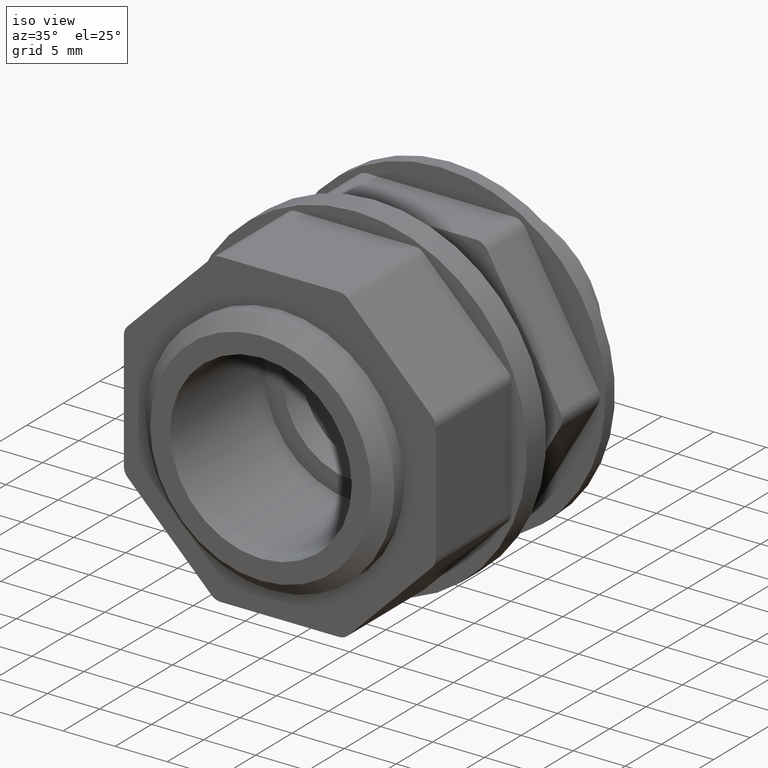
[diagram: clean part render]
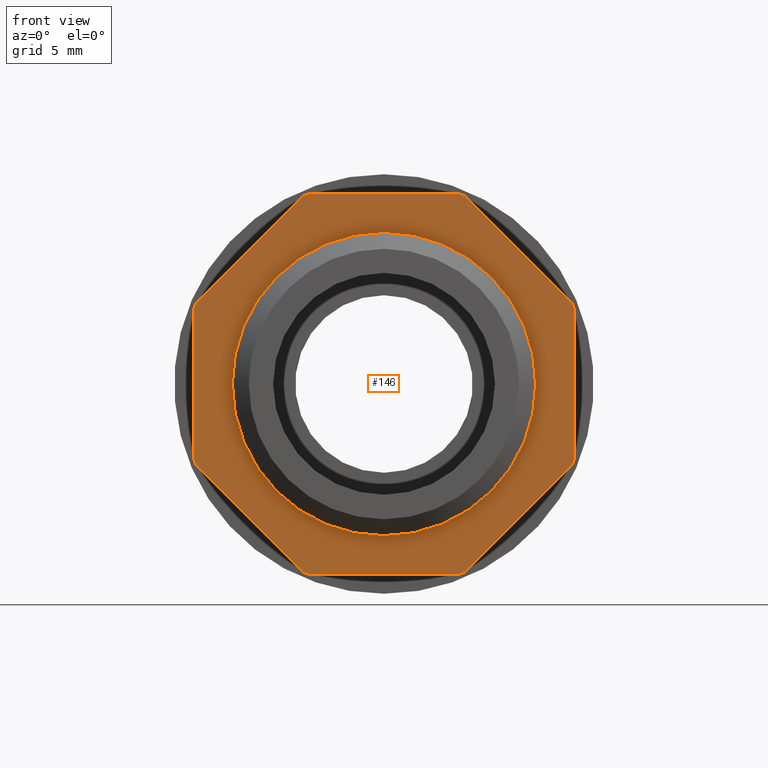
[diagram: tour spotlight — one face highlighted and labeled with its STEP entity id]
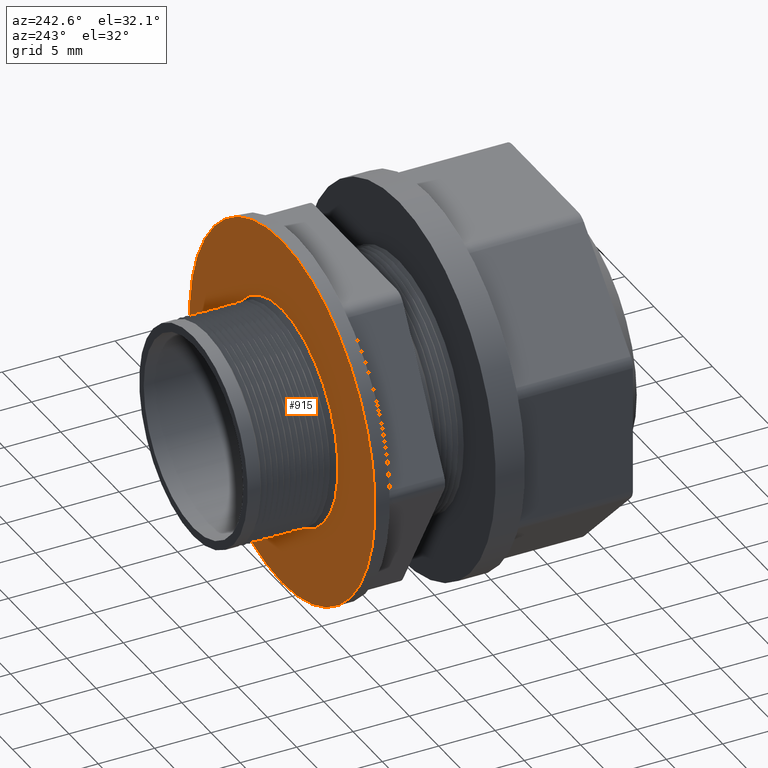
[diagram: tour spotlight — one face highlighted and labeled with its STEP entity id]
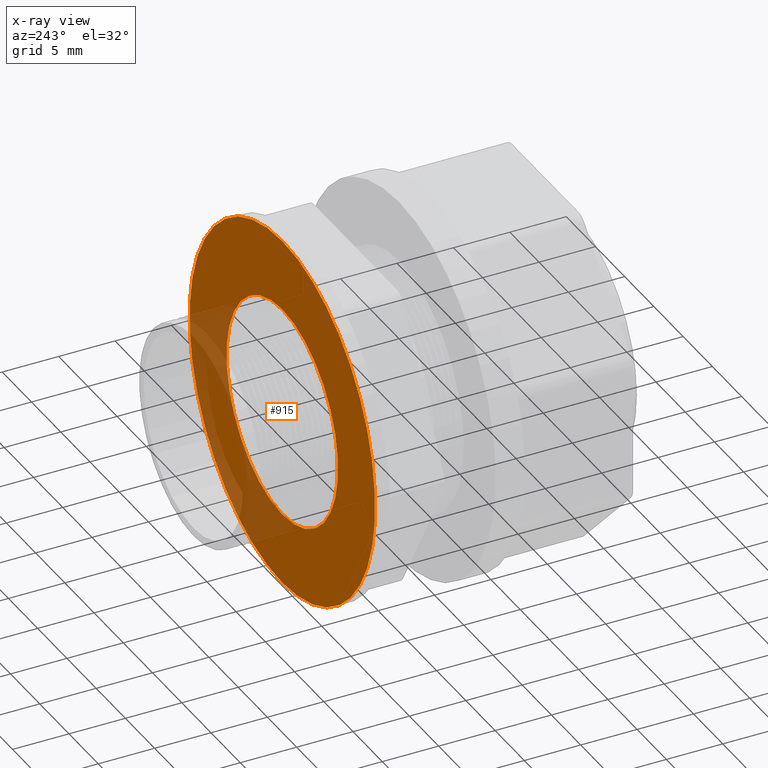
[diagram: x-ray of the same camera — body ghosted, this tour face saturated]
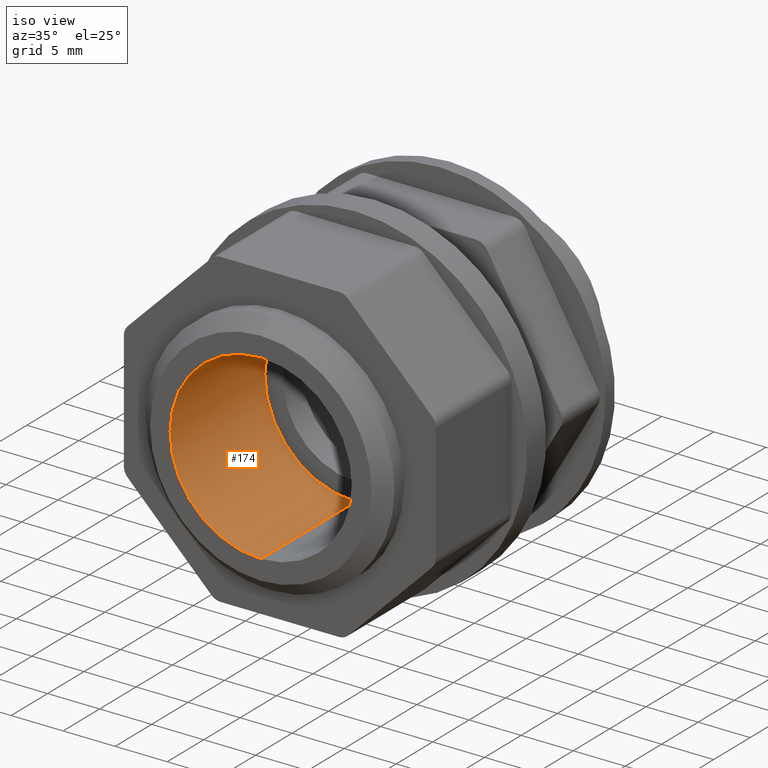
[diagram: tour spotlight — one face highlighted and labeled with its STEP entity id]
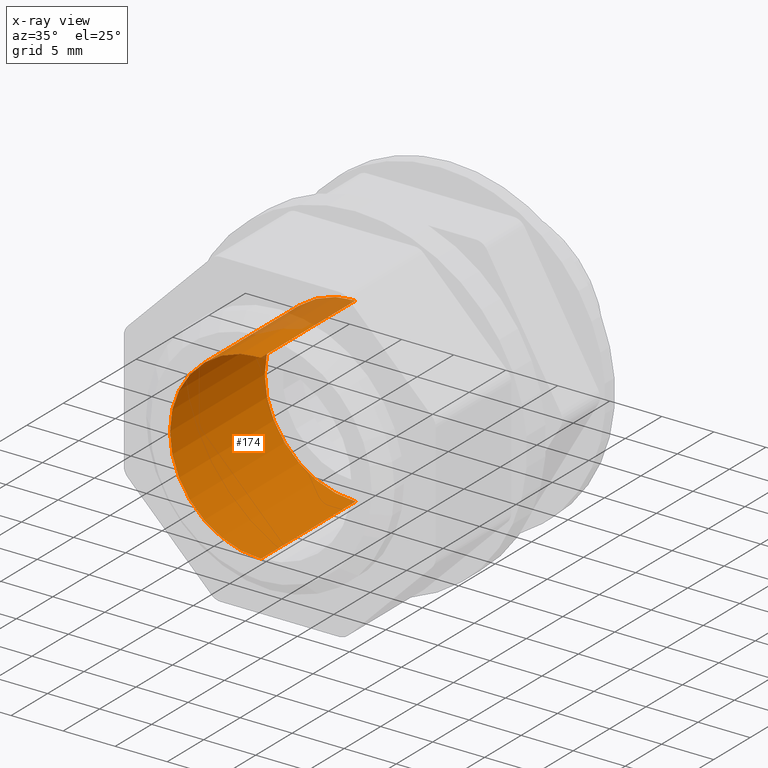
[diagram: x-ray of the same camera — body ghosted, this tour face saturated]
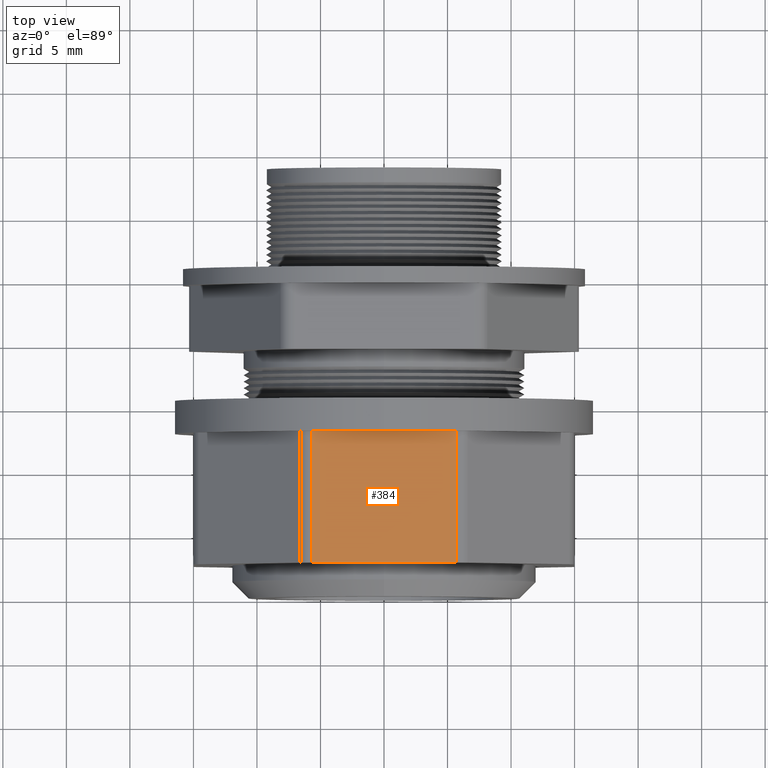
[diagram: tour spotlight — one face highlighted and labeled with its STEP entity id]
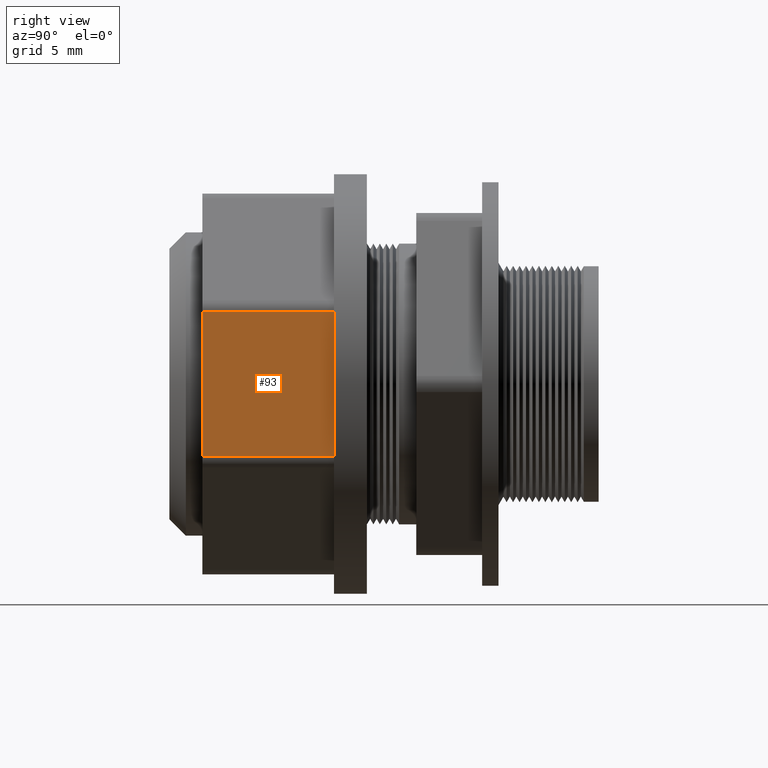
[diagram: tour spotlight — one face highlighted and labeled with its STEP entity id]
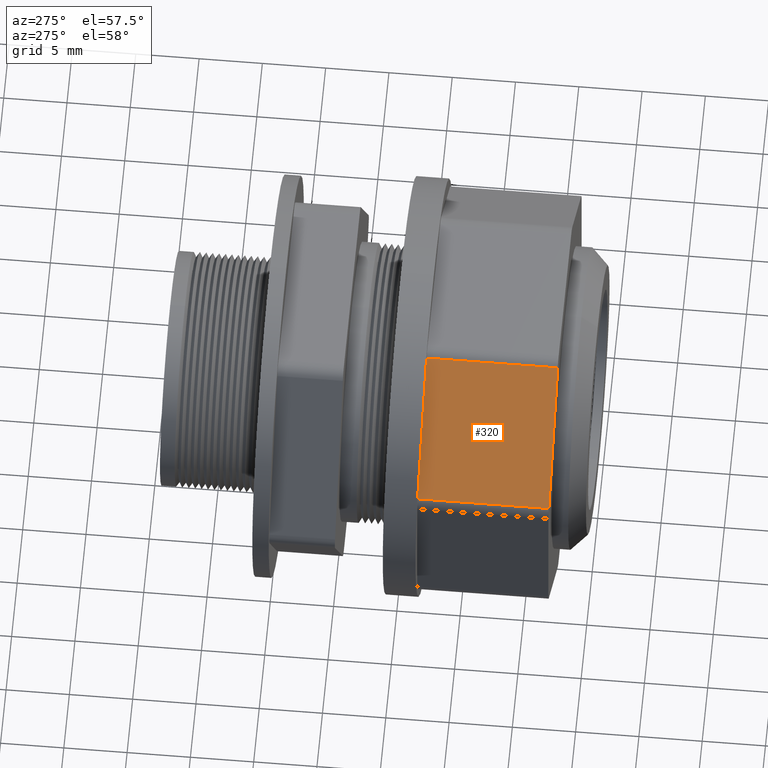
[diagram: tour spotlight — one face highlighted and labeled with its STEP entity id]
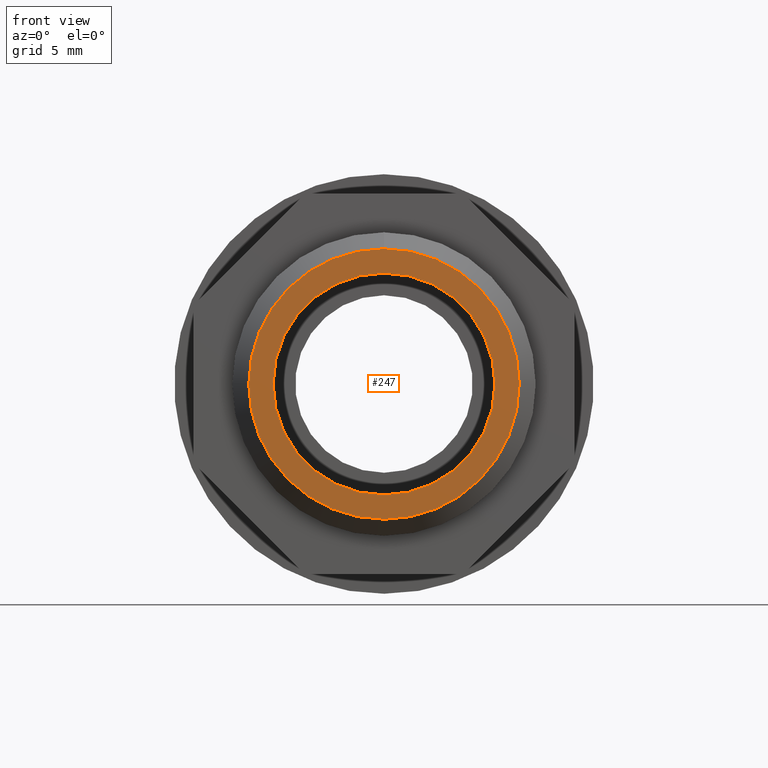
[diagram: tour spotlight — one face highlighted and labeled with its STEP entity id]
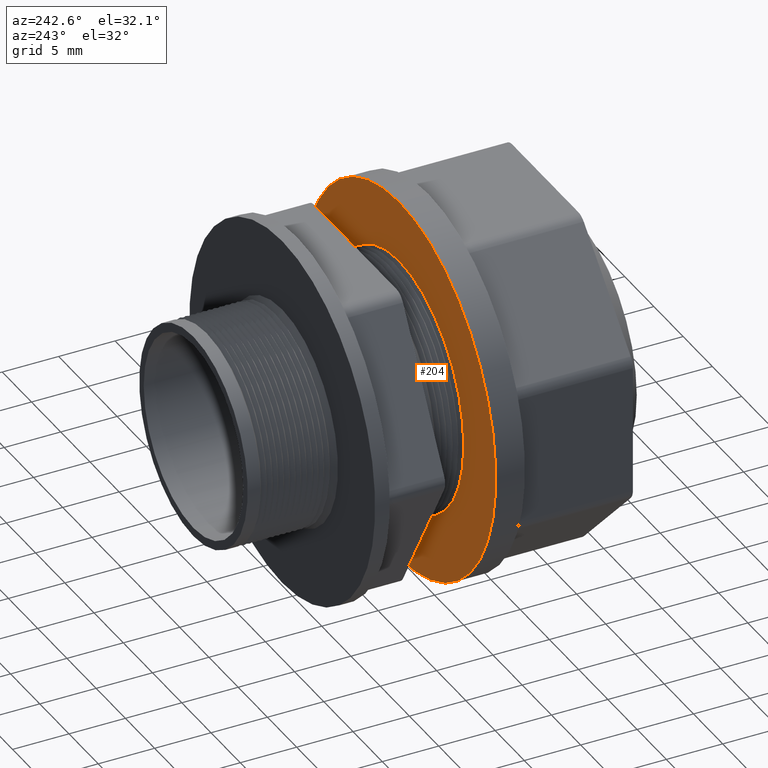
[diagram: tour spotlight — one face highlighted and labeled with its STEP entity id]
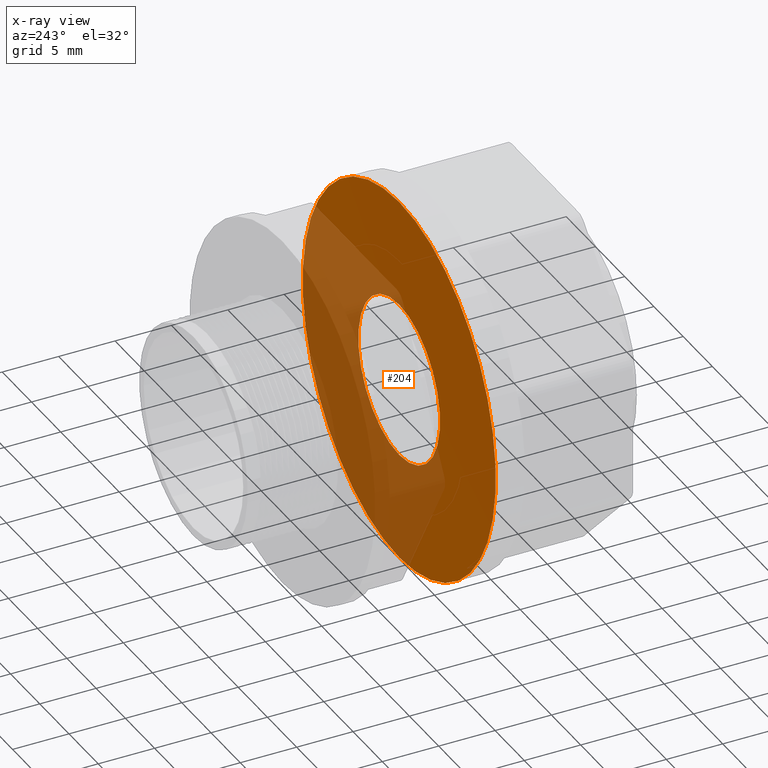
[diagram: x-ray of the same camera — body ghosted, this tour face saturated]
A machine part: a face-by-face anatomy tour. The part has 128 B-rep faces; the first image is the clean iso view, then the 8 largest visible faces are spotlighted one at a time (largest first), each with its STEP entity span.

Face 1 — front view, entity #146. In plain terms, the highlighted planar face has unit normal (0, -1, 0).
Definition (entity closure, byte-faithful):
#43 = VERTEX_POINT ( 'NONE', #1417 ) ;
#66 = EDGE_LOOP ( 'NONE', ( #147, #148 ) ) ;
#117 = VERTEX_POINT ( 'NONE', #1559 ) ;
#118 = VERTEX_POINT ( 'NONE', #1535 ) ;
#119 = ORIENTED_EDGE ( 'NONE', *, *, #120, .T. ) ;
#120 = EDGE_CURVE ( 'NONE', #118, #117, #1584, .T. ) ;
#121 = VERTEX_POINT ( 'NONE', #1574 ) ;
#122 = EDGE_CURVE ( 'NONE', #121, #118, #1554, .T. ) ;
#123 = ORIENTED_EDGE ( 'NONE', *, *, #264, .T. ) ;
#124 = EDGE_CURVE ( 'NONE', #132, #121, #1476, .T. ) ;
#125 = ORIENTED_EDGE ( 'NONE', *, *, #122, .T. ) ;
#127 = VERTEX_POINT ( 'NONE', #1515 ) ;
#128 = ORIENTED_EDGE ( 'NONE', *, *, #130, .T. ) ;
#129 = ORIENTED_EDGE ( 'NONE', *, *, #131, .T. ) ;
#130 = EDGE_CURVE ( 'NONE', #127, #132, #1526, .T. ) ;
#131 = EDGE_CURVE ( 'NONE', #134, #127, #1527, .T. ) ;
#132 = VERTEX_POINT ( 'NONE', #1556 ) ;
#134 = VERTEX_POINT ( 'NONE', #1474 ) ;
#135 = EDGE_CURVE ( 'NONE', #138, #134, #1473, .T. ) ;
#136 = EDGE_CURVE ( 'NONE', #237, #138, #1588, .T. ) ;
#137 = ORIENTED_EDGE ( 'NONE', *, *, #136, .T. ) ;
#138 = VERTEX_POINT ( 'NONE', #1571 ) ;
#139 = ORIENTED_EDGE ( 'NONE', *, *, #135, .T. ) ;
#143 = EDGE_CURVE ( 'NONE', #245, #237, #1523, .T. ) ;
#146 = ADVANCED_FACE ( 'NONE', ( #1531, #1624 ), #1623, .T. ) ;
#147 = ORIENTED_EDGE ( 'NONE', *, *, #157, .T. ) ;
#148 = ORIENTED_EDGE ( 'NONE', *, *, #149, .T. ) ;
#149 = EDGE_CURVE ( 'NONE', #173, #43, #1564, .T. ) ;
#150 = EDGE_LOOP ( 'NONE', ( #151, #241, #244, #238, #137, #139, #129, #128, #239, #125, #119, #123, #255, #193, #185, #192 ) ) ;
#151 = ORIENTED_EDGE ( 'NONE', *, *, #152, .T. ) ;
#152 = EDGE_CURVE ( 'NONE', #153, #154, #1601, .T. ) ;
#153 = VERTEX_POINT ( 'NONE', #1597 ) ;
#154 = VERTEX_POINT ( 'NONE', #1582 ) ;
#157 = EDGE_CURVE ( 'NONE', #43, #173, #1622, .T. ) ;
#173 = VERTEX_POINT ( 'NONE', #1495 ) ;
#182 = VERTEX_POINT ( 'NONE', #1511 ) ;
#183 = EDGE_CURVE ( 'NONE', #263, #182, #1510, .T. ) ;
#184 = EDGE_CURVE ( 'NONE', #182, #194, #1506, .T. ) ;
#185 = ORIENTED_EDGE ( 'NONE', *, *, #191, .T. ) ;
#186 = VERTEX_POINT ( 'NONE', #1540 ) ;
#191 = EDGE_CURVE ( 'NONE', #194, #186, #1634, .T. ) ;
#192 = ORIENTED_EDGE ( 'NONE', *, *, #256, .T. ) ;
#193 = ORIENTED_EDGE ( 'NONE', *, *, #184, .T. ) ;
#194 = VERTEX_POINT ( 'NONE', #1630 ) ;
#237 = VERTEX_POINT ( 'NONE', #1792 ) ;
#238 = ORIENTED_EDGE ( 'NONE', *, *, #143, .T. ) ;
#239 = ORIENTED_EDGE ( 'NONE', *, *, #124, .T. ) ;
#240 = VERTEX_POINT ( 'NONE', #1791 ) ;
#241 = ORIENTED_EDGE ( 'NONE', *, *, #243, .T. ) ;
#242 = EDGE_CURVE ( 'NONE', #240, #245, #1718, .T. ) ;
#243 = EDGE_CURVE ( 'NONE', #154, #240, #1714, .T. ) ;
#244 = ORIENTED_EDGE ( 'NONE', *, *, #242, .T. ) ;
#245 = VERTEX_POINT ( 'NONE', #1709 ) ;
#255 = ORIENTED_EDGE ( 'NONE', *, *, #183, .T. ) ;
#256 = EDGE_CURVE ( 'NONE', #186, #153, #1735, .T. ) ;
#263 = VERTEX_POINT ( 'NONE', #1820 ) ;
#264 = EDGE_CURVE ( 'NONE', #117, #263, #1819, .T. ) ;
#1417 = CARTESIAN_POINT ( 'NONE',  ( 0.0000000000000000000, 0.1020000000000001700, 0.4699999999999997500 ) ) ;
#1468 = DIRECTION ( 'NONE',  ( 0.0000000000000000000, 0.0000000000000000000, 1.000000000000000000 ) ) ;
#1469 = DIRECTION ( 'NONE',  ( -0.0000000000000000000, 1.000000000000000000, -0.0000000000000000000 ) ) ;
#1470 = CARTESIAN_POINT ( 'NONE',  ( 0.0000000000000000000, 0.1020000000000001700, 0.0000000000000000000 ) ) ;
#1471 = AXIS2_PLACEMENT_3D ( 'NONE', #1470, #1469, #1468 ) ;
#1473 = CIRCLE ( 'NONE', #1587, 0.05000000000000001000 ) ;
#1474 = CARTESIAN_POINT ( 'NONE',  ( -0.5753553390593273400, 0.1019999999999999900, -0.2590306627407988900 ) ) ;
#1476 = LINE ( 'NONE', #1596, #1518 ) ;
#1495 = CARTESIAN_POINT ( 'NONE',  ( 5.755839955992557200E-017, 0.1020000000000001700, -0.4699999999999997500 ) ) ;
#1506 = CIRCLE ( 'NONE', #1544, 0.05000000000000001000 ) ;
#1507 = DIRECTION ( 'NONE',  ( 1.397301795899574700E-016, 0.0000000000000000000, 1.000000000000000000 ) ) ;
#1508 = VECTOR ( 'NONE', #1507, 39.37007874015748100 ) ;
#1509 = CARTESIAN_POINT ( 'NONE',  ( 0.5899999999999998600, 0.1019999999999999900, -1.481139903653548700E-016 ) ) ;
#1510 = LINE ( 'NONE', #1509, #1508 ) ;
#1511 = CARTESIAN_POINT ( 'NONE',  ( 0.5899999999999998600, 0.1019999999999999900, 0.2236753236814715300 ) ) ;
#1515 = CARTESIAN_POINT ( 'NONE',  ( -0.2590306627407983300, 0.1019999999999999900, -0.5753553390593274500 ) ) ;
#1517 = DIRECTION ( 'NONE',  ( 1.000000000000000000, 0.0000000000000000000, 0.0000000000000000000 ) ) ;
#1518 = VECTOR ( 'NONE', #1517, 39.37007874015748100 ) ;
#1520 = DIRECTION ( 'NONE',  ( 0.0000000000000000000, -1.000000000000000000, 0.0000000000000000000 ) ) ;
#1521 = CARTESIAN_POINT ( 'NONE',  ( -0.5399999999999999200, 0.1020000000000000400, 0.2236753236814710600 ) ) ;
#1522 = AXIS2_PLACEMENT_3D ( 'NONE', #1521, #1520, #1532 ) ;
#1523 = CIRCLE ( 'NONE', #1522, 0.05000000000000001000 ) ;
#1524 = DIRECTION ( 'NONE',  ( 0.0000000000000000000, -1.000000000000000000, 0.0000000000000000000 ) ) ;
#1525 = AXIS2_PLACEMENT_3D ( 'NONE', #1594, #1524, #1566 ) ;
#1526 = CIRCLE ( 'NONE', #1525, 0.05000000000000001000 ) ;
#1527 = LINE ( 'NONE', #1565, #1558 ) ;
#1531 = FACE_BOUND ( 'NONE', #66, .T. ) ;
#1532 = DIRECTION ( 'NONE',  ( 0.0000000000000000000, 0.0000000000000000000, -1.000000000000000000 ) ) ;
#1535 = CARTESIAN_POINT ( 'NONE',  ( 0.2590306627407986700, 0.1019999999999999900, -0.5753553390593274500 ) ) ;
#1540 = CARTESIAN_POINT ( 'NONE',  ( 0.2590306627407985000, 0.1019999999999999900, 0.5753553390593275600 ) ) ;
#1541 = DIRECTION ( 'NONE',  ( 0.0000000000000000000, 0.0000000000000000000, -1.000000000000000000 ) ) ;
#1542 = DIRECTION ( 'NONE',  ( 0.0000000000000000000, -1.000000000000000000, 0.0000000000000000000 ) ) ;
#1543 = CARTESIAN_POINT ( 'NONE',  ( 0.5399999999999998100, 0.1020000000000000400, 0.2236753236814715300 ) ) ;
#1544 = AXIS2_PLACEMENT_3D ( 'NONE', #1543, #1542, #1541 ) ;
#1554 = CIRCLE ( 'NONE', #1639, 0.05000000000000001000 ) ;
#1556 = CARTESIAN_POINT ( 'NONE',  ( -0.2236753236814710000, 0.1019999999999999900, -0.5899999999999999700 ) ) ;
#1557 = DIRECTION ( 'NONE',  ( 0.7071067811865479100, 0.0000000000000000000, -0.7071067811865470200 ) ) ;
#1558 = VECTOR ( 'NONE', #1557, 39.37007874015748900 ) ;
#1559 = CARTESIAN_POINT ( 'NONE',  ( 0.5753553390593273400, 0.1019999999999999900, -0.2590306627407986700 ) ) ;
#1560 = DIRECTION ( 'NONE',  ( 0.0000000000000000000, -0.0000000000000000000, -1.000000000000000000 ) ) ;
#1561 = DIRECTION ( 'NONE',  ( 0.0000000000000000000, -1.000000000000000000, 0.0000000000000000000 ) ) ;
#1562 = CARTESIAN_POINT ( 'NONE',  ( -0.4699999999999997500, 0.1019999999999999900, 0.0000000000000000000 ) ) ;
#1563 = AXIS2_PLACEMENT_3D ( 'NONE', #1562, #1561, #1560 ) ;
#1564 = CIRCLE ( 'NONE', #1471, 0.4699999999999997500 ) ;
#1565 = CARTESIAN_POINT ( 'NONE',  ( -0.6521930009000629400, 0.1019999999999999900, -0.1821930009000633200 ) ) ;
#1566 = DIRECTION ( 'NONE',  ( 0.0000000000000000000, 0.0000000000000000000, -1.000000000000000000 ) ) ;
#1567 = CARTESIAN_POINT ( 'NONE',  ( -0.5899999999999999700, 0.1019999999999999900, -1.676762155079492700E-017 ) ) ;
#1568 = DIRECTION ( 'NONE',  ( 0.0000000000000000000, 0.0000000000000000000, -1.000000000000000000 ) ) ;
#1571 = CARTESIAN_POINT ( 'NONE',  ( -0.5899999999999999700, 0.1019999999999999900, -0.2236753236814714700 ) ) ;
#1572 = DIRECTION ( 'NONE',  ( 1.397301795899575200E-016, 0.0000000000000000000, -1.000000000000000000 ) ) ;
#1573 = VECTOR ( 'NONE', #1572, 39.37007874015748100 ) ;
#1574 = CARTESIAN_POINT ( 'NONE',  ( 0.2236753236814711400, 0.1019999999999999900, -0.5899999999999999700 ) ) ;
#1575 = DIRECTION ( 'NONE',  ( 0.7071067811865473500, 0.0000000000000000000, 0.7071067811865475700 ) ) ;
#1576 = VECTOR ( 'NONE', #1575, 39.37007874015748900 ) ;
#1582 = CARTESIAN_POINT ( 'NONE',  ( -0.2236753236814713100, 0.1019999999999999900, 0.5900000000000000800 ) ) ;
#1583 = CARTESIAN_POINT ( 'NONE',  ( 0.1821930009000633200, 0.1019999999999999900, -0.6521930009000628200 ) ) ;
#1584 = LINE ( 'NONE', #1583, #1576 ) ;
#1585 = DIRECTION ( 'NONE',  ( 0.0000000000000000000, -1.000000000000000000, 0.0000000000000000000 ) ) ;
#1586 = CARTESIAN_POINT ( 'NONE',  ( -0.5399999999999999200, 0.1020000000000000400, -0.2236753236814714700 ) ) ;
#1587 = AXIS2_PLACEMENT_3D ( 'NONE', #1586, #1585, #1568 ) ;
#1588 = LINE ( 'NONE', #1567, #1573 ) ;
#1594 = CARTESIAN_POINT ( 'NONE',  ( -0.2236753236814710000, 0.1020000000000000400, -0.5399999999999999200 ) ) ;
#1596 = CARTESIAN_POINT ( 'NONE',  ( -0.4699999999999997500, 0.1019999999999999900, -0.5899999999999999700 ) ) ;
#1597 = CARTESIAN_POINT ( 'NONE',  ( 0.2236753236814710600, 0.1019999999999999900, 0.5900000000000000800 ) ) ;
#1598 = DIRECTION ( 'NONE',  ( -1.000000000000000000, 0.0000000000000000000, -1.397301795899575700E-016 ) ) ;
#1599 = VECTOR ( 'NONE', #1598, 39.37007874015748100 ) ;
#1600 = CARTESIAN_POINT ( 'NONE',  ( -0.4699999999999998600, 0.1019999999999999900, 0.5900000000000000800 ) ) ;
#1601 = LINE ( 'NONE', #1600, #1599 ) ;
#1618 = DIRECTION ( 'NONE',  ( 0.0000000000000000000, 0.0000000000000000000, 1.000000000000000000 ) ) ;
#1619 = DIRECTION ( 'NONE',  ( -0.0000000000000000000, 1.000000000000000000, -0.0000000000000000000 ) ) ;
#1620 = CARTESIAN_POINT ( 'NONE',  ( 0.0000000000000000000, 0.1020000000000001700, 0.0000000000000000000 ) ) ;
#1621 = AXIS2_PLACEMENT_3D ( 'NONE', #1620, #1619, #1618 ) ;
#1622 = CIRCLE ( 'NONE', #1621, 0.4699999999999997500 ) ;
#1623 = PLANE ( 'NONE',  #1563 ) ;
#1624 = FACE_OUTER_BOUND ( 'NONE', #150, .T. ) ;
#1630 = CARTESIAN_POINT ( 'NONE',  ( 0.5753553390593273400, 0.1019999999999999900, 0.2590306627407989400 ) ) ;
#1631 = DIRECTION ( 'NONE',  ( -0.7071067811865476800, 0.0000000000000000000, 0.7071067811865472400 ) ) ;
#1632 = VECTOR ( 'NONE', #1631, 39.37007874015748900 ) ;
#1633 = CARTESIAN_POINT ( 'NONE',  ( 0.1821930009000629300, 0.1019999999999999900, 0.6521930009000630500 ) ) ;
#1634 = LINE ( 'NONE', #1633, #1632 ) ;
#1636 = DIRECTION ( 'NONE',  ( 0.0000000000000000000, 0.0000000000000000000, -1.000000000000000000 ) ) ;
#1637 = DIRECTION ( 'NONE',  ( 0.0000000000000000000, -1.000000000000000000, 0.0000000000000000000 ) ) ;
#1638 = CARTESIAN_POINT ( 'NONE',  ( 0.2236753236814711400, 0.1020000000000000400, -0.5399999999999999200 ) ) ;
#1639 = AXIS2_PLACEMENT_3D ( 'NONE', #1638, #1637, #1636 ) ;
#1709 = CARTESIAN_POINT ( 'NONE',  ( -0.5753553390593273400, 0.1019999999999999900, 0.2590306627407983900 ) ) ;
#1710 = DIRECTION ( 'NONE',  ( 0.0000000000000000000, 0.0000000000000000000, -1.000000000000000000 ) ) ;
#1711 = DIRECTION ( 'NONE',  ( 0.0000000000000000000, -1.000000000000000000, 0.0000000000000000000 ) ) ;
#1712 = CARTESIAN_POINT ( 'NONE',  ( -0.2236753236814713100, 0.1020000000000000400, 0.5400000000000000400 ) ) ;
#1713 = AXIS2_PLACEMENT_3D ( 'NONE', #1712, #1711, #1710 ) ;
#1714 = CIRCLE ( 'NONE', #1713, 0.05000000000000001000 ) ;
#1715 = DIRECTION ( 'NONE',  ( -0.7071067811865472400, 0.0000000000000000000, -0.7071067811865479100 ) ) ;
#1716 = VECTOR ( 'NONE', #1715, 39.37007874015748100 ) ;
#1717 = CARTESIAN_POINT ( 'NONE',  ( -0.6521930009000628200, 0.1019999999999999900, 0.1821930009000628800 ) ) ;
#1718 = LINE ( 'NONE', #1717, #1716 ) ;
#1727 = DIRECTION ( 'NONE',  ( 0.0000000000000000000, 0.0000000000000000000, -1.000000000000000000 ) ) ;
#1728 = DIRECTION ( 'NONE',  ( 0.0000000000000000000, -1.000000000000000000, 0.0000000000000000000 ) ) ;
#1729 = CARTESIAN_POINT ( 'NONE',  ( 0.2236753236814710600, 0.1020000000000000400, 0.5400000000000001500 ) ) ;
#1730 = AXIS2_PLACEMENT_3D ( 'NONE', #1729, #1728, #1727 ) ;
#1735 = CIRCLE ( 'NONE', #1730, 0.05000000000000001000 ) ;
#1791 = CARTESIAN_POINT ( 'NONE',  ( -0.2590306627407986700, 0.1019999999999999900, 0.5753553390593274500 ) ) ;
#1792 = CARTESIAN_POINT ( 'NONE',  ( -0.5899999999999999700, 0.1019999999999999900, 0.2236753236814710600 ) ) ;
#1815 = DIRECTION ( 'NONE',  ( 0.0000000000000000000, 0.0000000000000000000, -1.000000000000000000 ) ) ;
#1816 = DIRECTION ( 'NONE',  ( 0.0000000000000000000, -1.000000000000000000, 0.0000000000000000000 ) ) ;
#1817 = CARTESIAN_POINT ( 'NONE',  ( 0.5399999999999998100, 0.1020000000000000400, -0.2236753236814712800 ) ) ;
#1818 = AXIS2_PLACEMENT_3D ( 'NONE', #1817, #1816, #1815 ) ;
#1819 = CIRCLE ( 'NONE', #1818, 0.05000000000000001000 ) ;
#1820 = CARTESIAN_POINT ( 'NONE',  ( 0.5899999999999998600, 0.1019999999999999900, -0.2236753236814712800 ) ) ;

Face 2 — auxiliary view, entity #915. An x-ray twin of the same camera follows (body ghosted, this face saturated) — the face is partly hidden behind the body. In plain terms, the highlighted planar face has unit normal (-0, 1, 0).
Definition (entity closure, byte-faithful):
#516 = VERTEX_POINT ( 'NONE', #2132 ) ;
#774 = EDGE_CURVE ( 'NONE', #775, #516, #2720, .T. ) ;
#775 = VERTEX_POINT ( 'NONE', #2745 ) ;
#800 = VERTEX_POINT ( 'NONE', #2682 ) ;
#802 = EDGE_CURVE ( 'NONE', #800, #803, #2679, .T. ) ;
#803 = VERTEX_POINT ( 'NONE', #2680 ) ;
#853 = EDGE_CURVE ( 'NONE', #516, #775, #2820, .T. ) ;
#888 = EDGE_LOOP ( 'NONE', ( #891, #967 ) ) ;
#889 = ORIENTED_EDGE ( 'NONE', *, *, #802, .F. ) ;
#891 = ORIENTED_EDGE ( 'NONE', *, *, #774, .T. ) ;
#892 = EDGE_CURVE ( 'NONE', #803, #800, #2862, .T. ) ;
#915 = ADVANCED_FACE ( 'NONE', ( #2895, #2894 ), #2893, .T. ) ;
#916 = EDGE_LOOP ( 'NONE', ( #993, #889 ) ) ;
#967 = ORIENTED_EDGE ( 'NONE', *, *, #853, .T. ) ;
#993 = ORIENTED_EDGE ( 'NONE', *, *, #892, .F. ) ;
#2132 = CARTESIAN_POINT ( 'NONE',  ( 7.654042494670955400E-017, 1.020000000000000000, -0.6249999999999998900 ) ) ;
#2676 = AXIS2_PLACEMENT_3D ( 'NONE', #2762, #2764, #2694 ) ;
#2679 = CIRCLE ( 'NONE', #2755, 0.3749999999999999400 ) ;
#2680 = CARTESIAN_POINT ( 'NONE',  ( 0.0000000000000000000, 1.020000000000000000, -0.3749999999999999400 ) ) ;
#2681 = DIRECTION ( 'NONE',  ( 0.0000000000000000000, 0.0000000000000000000, 1.000000000000000000 ) ) ;
#2682 = CARTESIAN_POINT ( 'NONE',  ( 4.592425496802573600E-017, 1.020000000000000000, 0.3749999999999999400 ) ) ;
#2694 = DIRECTION ( 'NONE',  ( 0.0000000000000000000, 0.0000000000000000000, 1.000000000000000000 ) ) ;
#2720 = CIRCLE ( 'NONE', #2676, 0.6249999999999998900 ) ;
#2745 = CARTESIAN_POINT ( 'NONE',  ( 0.0000000000000000000, 1.020000000000000000, 0.6249999999999998900 ) ) ;
#2753 = DIRECTION ( 'NONE',  ( -0.0000000000000000000, 1.000000000000000000, -0.0000000000000000000 ) ) ;
#2754 = CARTESIAN_POINT ( 'NONE',  ( 0.0000000000000000000, 1.020000000000000000, 0.0000000000000000000 ) ) ;
#2755 = AXIS2_PLACEMENT_3D ( 'NONE', #2754, #2753, #2681 ) ;
#2762 = CARTESIAN_POINT ( 'NONE',  ( 0.0000000000000000000, 1.020000000000000000, 0.0000000000000000000 ) ) ;
#2764 = DIRECTION ( 'NONE',  ( -0.0000000000000000000, 1.000000000000000000, -0.0000000000000000000 ) ) ;
#2818 = DIRECTION ( 'NONE',  ( 0.0000000000000000000, 0.0000000000000000000, 1.000000000000000000 ) ) ;
#2820 = CIRCLE ( 'NONE', #2832, 0.6249999999999998900 ) ;
#2821 = DIRECTION ( 'NONE',  ( -0.0000000000000000000, 1.000000000000000000, -0.0000000000000000000 ) ) ;
#2832 = AXIS2_PLACEMENT_3D ( 'NONE', #2856, #2821, #2818 ) ;
#2856 = CARTESIAN_POINT ( 'NONE',  ( 0.0000000000000000000, 1.020000000000000000, 0.0000000000000000000 ) ) ;
#2862 = CIRCLE ( 'NONE', #2940, 0.3749999999999999400 ) ;
#2888 = DIRECTION ( 'NONE',  ( 0.0000000000000000000, 0.0000000000000000000, 1.000000000000000000 ) ) ;
#2889 = DIRECTION ( 'NONE',  ( -0.0000000000000000000, 1.000000000000000000, 0.0000000000000000000 ) ) ;
#2890 = AXIS2_PLACEMENT_3D ( 'NONE', #2892, #2889, #2888 ) ;
#2892 = CARTESIAN_POINT ( 'NONE',  ( -0.3749999999999999400, 1.020000000000000000, 0.0000000000000000000 ) ) ;
#2893 = PLANE ( 'NONE',  #2890 ) ;
#2894 = FACE_BOUND ( 'NONE', #916, .T. ) ;
#2895 = FACE_OUTER_BOUND ( 'NONE', #888, .T. ) ;
#2937 = DIRECTION ( 'NONE',  ( 0.0000000000000000000, 0.0000000000000000000, 1.000000000000000000 ) ) ;
#2938 = DIRECTION ( 'NONE',  ( -0.0000000000000000000, 1.000000000000000000, -0.0000000000000000000 ) ) ;
#2939 = CARTESIAN_POINT ( 'NONE',  ( 0.0000000000000000000, 1.020000000000000000, 0.0000000000000000000 ) ) ;
#2940 = AXIS2_PLACEMENT_3D ( 'NONE', #2939, #2938, #2937 ) ;

Face 3 — iso view, entity #174. An x-ray twin of the same camera follows (body ghosted, this face saturated) — the face is partly hidden behind the body. In plain terms, the highlighted cylindrical surface (partial cylindrical patch) has radius 8.7312 mm, axis along (-0, -1, -0).
Definition (entity closure, byte-faithful):
#40 = ORIENTED_EDGE ( 'NONE', *, *, #41, .F. ) ;
#41 = EDGE_CURVE ( 'NONE', #181, #50, #1386, .T. ) ;
#47 = EDGE_LOOP ( 'NONE', ( #177, #178, #48, #40 ) ) ;
#48 = ORIENTED_EDGE ( 'NONE', *, *, #49, .T. ) ;
#49 = EDGE_CURVE ( 'NONE', #179, #50, #1320, .T. ) ;
#50 = VERTEX_POINT ( 'NONE', #1406 ) ;
#51 = EDGE_CURVE ( 'NONE', #180, #179, #1358, .T. ) ;
#167 = EDGE_CURVE ( 'NONE', #180, #181, #1493, .T. ) ;
#174 = ADVANCED_FACE ( 'NONE', ( #1553 ), #1550, .F. ) ;
#177 = ORIENTED_EDGE ( 'NONE', *, *, #167, .F. ) ;
#178 = ORIENTED_EDGE ( 'NONE', *, *, #51, .T. ) ;
#179 = VERTEX_POINT ( 'NONE', #1551 ) ;
#180 = VERTEX_POINT ( 'NONE', #1513 ) ;
#181 = VERTEX_POINT ( 'NONE', #1512 ) ;
#1320 = CIRCLE ( 'NONE', #1366, 0.3437500000000000000 ) ;
#1331 = VECTOR ( 'NONE', #1399, 39.37007874015748100 ) ;
#1355 = DIRECTION ( 'NONE',  ( -0.0000000000000000000, -1.000000000000000000, -0.0000000000000000000 ) ) ;
#1356 = VECTOR ( 'NONE', #1355, 39.37007874015748100 ) ;
#1357 = CARTESIAN_POINT ( 'NONE',  ( 4.209723372069026300E-017, 0.5120000000000000100, 0.3437500000000000000 ) ) ;
#1358 = LINE ( 'NONE', #1357, #1356 ) ;
#1364 = DIRECTION ( 'NONE',  ( 0.0000000000000000000, -1.000000000000000000, 0.0000000000000000000 ) ) ;
#1365 = CARTESIAN_POINT ( 'NONE',  ( 0.0000000000000000000, 0.0000000000000000000, 0.0000000000000000000 ) ) ;
#1366 = AXIS2_PLACEMENT_3D ( 'NONE', #1365, #1364, #1407 ) ;
#1386 = LINE ( 'NONE', #1400, #1331 ) ;
#1399 = DIRECTION ( 'NONE',  ( -0.0000000000000000000, -1.000000000000000000, -0.0000000000000000000 ) ) ;
#1400 = CARTESIAN_POINT ( 'NONE',  ( 0.0000000000000000000, 0.5120000000000000100, -0.3437500000000000000 ) ) ;
#1406 = CARTESIAN_POINT ( 'NONE',  ( 0.0000000000000000000, 0.0000000000000000000, -0.3437500000000000000 ) ) ;
#1407 = DIRECTION ( 'NONE',  ( 0.0000000000000000000, 0.0000000000000000000, -1.000000000000000000 ) ) ;
#1489 = DIRECTION ( 'NONE',  ( 0.0000000000000000000, 0.0000000000000000000, -1.000000000000000000 ) ) ;
#1490 = DIRECTION ( 'NONE',  ( 0.0000000000000000000, -1.000000000000000000, 0.0000000000000000000 ) ) ;
#1491 = CARTESIAN_POINT ( 'NONE',  ( 0.0000000000000000000, 0.5120000000000000100, 0.0000000000000000000 ) ) ;
#1492 = AXIS2_PLACEMENT_3D ( 'NONE', #1491, #1490, #1489 ) ;
#1493 = CIRCLE ( 'NONE', #1492, 0.3437500000000000000 ) ;
#1512 = CARTESIAN_POINT ( 'NONE',  ( 0.0000000000000000000, 0.5120000000000000100, -0.3437500000000000000 ) ) ;
#1513 = CARTESIAN_POINT ( 'NONE',  ( 4.209723372069026300E-017, 0.5120000000000000100, 0.3437500000000000000 ) ) ;
#1547 = DIRECTION ( 'NONE',  ( 0.0000000000000000000, 0.0000000000000000000, -1.000000000000000000 ) ) ;
#1548 = DIRECTION ( 'NONE',  ( -0.0000000000000000000, -1.000000000000000000, -0.0000000000000000000 ) ) ;
#1549 = AXIS2_PLACEMENT_3D ( 'NONE', #1552, #1548, #1547 ) ;
#1550 = CYLINDRICAL_SURFACE ( 'NONE', #1549, 0.3437500000000000000 ) ;
#1551 = CARTESIAN_POINT ( 'NONE',  ( 4.209723372069026300E-017, 0.0000000000000000000, 0.3437500000000000000 ) ) ;
#1552 = CARTESIAN_POINT ( 'NONE',  ( 0.0000000000000000000, 0.5120000000000000100, 0.0000000000000000000 ) ) ;
#1553 = FACE_OUTER_BOUND ( 'NONE', #47, .T. ) ;

Face 4 — top view, entity #384. In plain terms, the highlighted planar face has unit normal (-0, 0, 1).
Definition (entity closure, byte-faithful):
#97 = VERTEX_POINT ( 'NONE', #1425 ) ;
#99 = EDGE_CURVE ( 'NONE', #100, #97, #1424, .T. ) ;
#100 = VERTEX_POINT ( 'NONE', #1420 ) ;
#152 = EDGE_CURVE ( 'NONE', #153, #154, #1601, .T. ) ;
#153 = VERTEX_POINT ( 'NONE', #1597 ) ;
#154 = VERTEX_POINT ( 'NONE', #1582 ) ;
#299 = EDGE_LOOP ( 'NONE', ( #300, #310, #441, #442 ) ) ;
#300 = ORIENTED_EDGE ( 'NONE', *, *, #99, .T. ) ;
#310 = ORIENTED_EDGE ( 'NONE', *, *, #311, .T. ) ;
#311 = EDGE_CURVE ( 'NONE', #97, #154, #1674, .T. ) ;
#321 = EDGE_CURVE ( 'NONE', #153, #100, #1784, .T. ) ;
#384 = ADVANCED_FACE ( 'NONE', ( #2077 ), #2076, .T. ) ;
#441 = ORIENTED_EDGE ( 'NONE', *, *, #152, .F. ) ;
#442 = ORIENTED_EDGE ( 'NONE', *, *, #321, .T. ) ;
#1420 = CARTESIAN_POINT ( 'NONE',  ( 0.2236753236814710600, 0.5100000000000000100, 0.5900000000000000800 ) ) ;
#1421 = DIRECTION ( 'NONE',  ( -1.000000000000000000, 0.0000000000000000000, -1.397301795899575400E-016 ) ) ;
#1422 = VECTOR ( 'NONE', #1421, 39.37007874015748100 ) ;
#1423 = CARTESIAN_POINT ( 'NONE',  ( 0.2443860018001257900, 0.5100000000000000100, 0.5900000000000000800 ) ) ;
#1424 = LINE ( 'NONE', #1423, #1422 ) ;
#1425 = CARTESIAN_POINT ( 'NONE',  ( -0.2236753236814713100, 0.5100000000000000100, 0.5900000000000000800 ) ) ;
#1582 = CARTESIAN_POINT ( 'NONE',  ( -0.2236753236814713100, 0.1019999999999999900, 0.5900000000000000800 ) ) ;
#1597 = CARTESIAN_POINT ( 'NONE',  ( 0.2236753236814710600, 0.1019999999999999900, 0.5900000000000000800 ) ) ;
#1598 = DIRECTION ( 'NONE',  ( -1.000000000000000000, 0.0000000000000000000, -1.397301795899575700E-016 ) ) ;
#1599 = VECTOR ( 'NONE', #1598, 39.37007874015748100 ) ;
#1600 = CARTESIAN_POINT ( 'NONE',  ( -0.4699999999999998600, 0.1019999999999999900, 0.5900000000000000800 ) ) ;
#1601 = LINE ( 'NONE', #1600, #1599 ) ;
#1658 = DIRECTION ( 'NONE',  ( 0.0000000000000000000, -1.000000000000000000, 0.0000000000000000000 ) ) ;
#1659 = VECTOR ( 'NONE', #1658, 39.37007874015748100 ) ;
#1673 = CARTESIAN_POINT ( 'NONE',  ( -0.2236753236814713100, 0.5100000000000000100, 0.5900000000000000800 ) ) ;
#1674 = LINE ( 'NONE', #1673, #1659 ) ;
#1779 = VECTOR ( 'NONE', #1861, 39.37007874015748100 ) ;
#1780 = CARTESIAN_POINT ( 'NONE',  ( 0.2236753236814710600, 0.5100000000000000100, 0.5900000000000000800 ) ) ;
#1784 = LINE ( 'NONE', #1780, #1779 ) ;
#1861 = DIRECTION ( 'NONE',  ( -0.0000000000000000000, 1.000000000000000000, -0.0000000000000000000 ) ) ;
#2068 = DIRECTION ( 'NONE',  ( 1.000000000000000000, 0.0000000000000000000, 1.397301795899575700E-016 ) ) ;
#2069 = DIRECTION ( 'NONE',  ( -1.397301795899575700E-016, 0.0000000000000000000, 1.000000000000000000 ) ) ;
#2070 = CARTESIAN_POINT ( 'NONE',  ( 0.2443860018001257900, 0.5100000000000000100, 0.5900000000000000800 ) ) ;
#2071 = AXIS2_PLACEMENT_3D ( 'NONE', #2070, #2069, #2068 ) ;
#2076 = PLANE ( 'NONE',  #2071 ) ;
#2077 = FACE_OUTER_BOUND ( 'NONE', #299, .T. ) ;

Face 5 — right view, entity #93. In plain terms, the highlighted planar face has unit normal (1, 0, -0).
Definition (entity closure, byte-faithful):
#1 = ORIENTED_EDGE ( 'NONE', *, *, #34, .T. ) ;
#2 = ORIENTED_EDGE ( 'NONE', *, *, #443, .T. ) ;
#8 = EDGE_CURVE ( 'NONE', #35, #182, #1203, .T. ) ;
#34 = EDGE_CURVE ( 'NONE', #221, #35, #1448, .T. ) ;
#35 = VERTEX_POINT ( 'NONE', #1449 ) ;
#93 = ADVANCED_FACE ( 'NONE', ( #1431 ), #1436, .T. ) ;
#94 = EDGE_LOOP ( 'NONE', ( #290, #2, #1, #448 ) ) ;
#182 = VERTEX_POINT ( 'NONE', #1511 ) ;
#183 = EDGE_CURVE ( 'NONE', #263, #182, #1510, .T. ) ;
#221 = VERTEX_POINT ( 'NONE', #1753 ) ;
#263 = VERTEX_POINT ( 'NONE', #1820 ) ;
#290 = ORIENTED_EDGE ( 'NONE', *, *, #183, .F. ) ;
#443 = EDGE_CURVE ( 'NONE', #263, #221, #1959, .T. ) ;
#448 = ORIENTED_EDGE ( 'NONE', *, *, #8, .T. ) ;
#1200 = DIRECTION ( 'NONE',  ( 0.0000000000000000000, -1.000000000000000000, 0.0000000000000000000 ) ) ;
#1201 = VECTOR ( 'NONE', #1200, 39.37007874015748100 ) ;
#1202 = CARTESIAN_POINT ( 'NONE',  ( 0.5899999999999998600, 0.5100000000000000100, 0.2236753236814715300 ) ) ;
#1203 = LINE ( 'NONE', #1202, #1201 ) ;
#1332 = CARTESIAN_POINT ( 'NONE',  ( 0.5899999999999997500, 0.5100000000000000100, -0.2443860018001259600 ) ) ;
#1351 = DIRECTION ( 'NONE',  ( 1.397301795899574400E-016, 0.0000000000000000000, 1.000000000000000000 ) ) ;
#1352 = VECTOR ( 'NONE', #1351, 39.37007874015748100 ) ;
#1373 = DIRECTION ( 'NONE',  ( -1.397301795899574700E-016, 0.0000000000000000000, -1.000000000000000000 ) ) ;
#1374 = DIRECTION ( 'NONE',  ( 1.000000000000000000, 0.0000000000000000000, -1.397301795899574700E-016 ) ) ;
#1375 = CARTESIAN_POINT ( 'NONE',  ( 0.5899999999999997500, 0.5100000000000000100, -0.2443860018001259600 ) ) ;
#1377 = AXIS2_PLACEMENT_3D ( 'NONE', #1375, #1374, #1373 ) ;
#1431 = FACE_OUTER_BOUND ( 'NONE', #94, .T. ) ;
#1436 = PLANE ( 'NONE',  #1377 ) ;
#1448 = LINE ( 'NONE', #1332, #1352 ) ;
#1449 = CARTESIAN_POINT ( 'NONE',  ( 0.5899999999999998600, 0.5100000000000000100, 0.2236753236814715300 ) ) ;
#1507 = DIRECTION ( 'NONE',  ( 1.397301795899574700E-016, 0.0000000000000000000, 1.000000000000000000 ) ) ;
#1508 = VECTOR ( 'NONE', #1507, 39.37007874015748100 ) ;
#1509 = CARTESIAN_POINT ( 'NONE',  ( 0.5899999999999998600, 0.1019999999999999900, -1.481139903653548700E-016 ) ) ;
#1510 = LINE ( 'NONE', #1509, #1508 ) ;
#1511 = CARTESIAN_POINT ( 'NONE',  ( 0.5899999999999998600, 0.1019999999999999900, 0.2236753236814715300 ) ) ;
#1753 = CARTESIAN_POINT ( 'NONE',  ( 0.5899999999999997500, 0.5100000000000000100, -0.2236753236814712800 ) ) ;
#1820 = CARTESIAN_POINT ( 'NONE',  ( 0.5899999999999998600, 0.1019999999999999900, -0.2236753236814712800 ) ) ;
#1956 = DIRECTION ( 'NONE',  ( -0.0000000000000000000, 1.000000000000000000, -0.0000000000000000000 ) ) ;
#1957 = VECTOR ( 'NONE', #1956, 39.37007874015748100 ) ;
#1958 = CARTESIAN_POINT ( 'NONE',  ( 0.5899999999999997500, 0.5100000000000000100, -0.2236753236814712800 ) ) ;
#1959 = LINE ( 'NONE', #1958, #1957 ) ;

Face 6 — auxiliary view, entity #320. In plain terms, the highlighted planar face has unit normal (-0.7071, 0, 0.7071).
Definition (entity closure, byte-faithful):
#23 = VERTEX_POINT ( 'NONE', #1287 ) ;
#86 = EDGE_CURVE ( 'NONE', #87, #23, #1459, .T. ) ;
#87 = VERTEX_POINT ( 'NONE', #1344 ) ;
#240 = VERTEX_POINT ( 'NONE', #1791 ) ;
#242 = EDGE_CURVE ( 'NONE', #240, #245, #1718, .T. ) ;
#245 = VERTEX_POINT ( 'NONE', #1709 ) ;
#304 = ORIENTED_EDGE ( 'NONE', *, *, #305, .T. ) ;
#305 = EDGE_CURVE ( 'NONE', #23, #245, #1682, .T. ) ;
#306 = ORIENTED_EDGE ( 'NONE', *, *, #307, .T. ) ;
#307 = EDGE_CURVE ( 'NONE', #240, #87, #1678, .T. ) ;
#320 = ADVANCED_FACE ( 'NONE', ( #1642 ), #1647, .T. ) ;
#342 = EDGE_LOOP ( 'NONE', ( #343, #306, #449, #304 ) ) ;
#343 = ORIENTED_EDGE ( 'NONE', *, *, #242, .F. ) ;
#449 = ORIENTED_EDGE ( 'NONE', *, *, #86, .T. ) ;
#1287 = CARTESIAN_POINT ( 'NONE',  ( -0.5753553390593274500, 0.5100000000000000100, 0.2590306627407983900 ) ) ;
#1328 = CARTESIAN_POINT ( 'NONE',  ( -0.2443860018001261000, 0.5100000000000000100, 0.5900000000000000800 ) ) ;
#1344 = CARTESIAN_POINT ( 'NONE',  ( -0.2590306627407987200, 0.5100000000000000100, 0.5753553390593274500 ) ) ;
#1345 = DIRECTION ( 'NONE',  ( -0.7071067811865472400, 0.0000000000000000000, -0.7071067811865479100 ) ) ;
#1346 = VECTOR ( 'NONE', #1345, 39.37007874015748100 ) ;
#1459 = LINE ( 'NONE', #1328, #1346 ) ;
#1642 = FACE_OUTER_BOUND ( 'NONE', #342, .T. ) ;
#1647 = PLANE ( 'NONE',  #1785 ) ;
#1675 = DIRECTION ( 'NONE',  ( -0.0000000000000000000, 1.000000000000000000, -0.0000000000000000000 ) ) ;
#1676 = VECTOR ( 'NONE', #1675, 39.37007874015748100 ) ;
#1677 = CARTESIAN_POINT ( 'NONE',  ( -0.2590306627407987200, 0.5100000000000000100, 0.5753553390593274500 ) ) ;
#1678 = LINE ( 'NONE', #1677, #1676 ) ;
#1679 = DIRECTION ( 'NONE',  ( 0.0000000000000000000, -1.000000000000000000, 0.0000000000000000000 ) ) ;
#1680 = VECTOR ( 'NONE', #1679, 39.37007874015748100 ) ;
#1681 = CARTESIAN_POINT ( 'NONE',  ( -0.5753553390593273400, 0.5100000000000000100, 0.2590306627407984500 ) ) ;
#1682 = LINE ( 'NONE', #1681, #1680 ) ;
#1709 = CARTESIAN_POINT ( 'NONE',  ( -0.5753553390593273400, 0.1019999999999999900, 0.2590306627407983900 ) ) ;
#1715 = DIRECTION ( 'NONE',  ( -0.7071067811865472400, 0.0000000000000000000, -0.7071067811865479100 ) ) ;
#1716 = VECTOR ( 'NONE', #1715, 39.37007874015748100 ) ;
#1717 = CARTESIAN_POINT ( 'NONE',  ( -0.6521930009000628200, 0.1019999999999999900, 0.1821930009000628800 ) ) ;
#1718 = LINE ( 'NONE', #1717, #1716 ) ;
#1781 = DIRECTION ( 'NONE',  ( 0.7071067811865472400, 0.0000000000000000000, 0.7071067811865479100 ) ) ;
#1782 = DIRECTION ( 'NONE',  ( -0.7071067811865479100, 0.0000000000000000000, 0.7071067811865472400 ) ) ;
#1783 = CARTESIAN_POINT ( 'NONE',  ( -0.2443860018001261000, 0.5100000000000000100, 0.5900000000000000800 ) ) ;
#1785 = AXIS2_PLACEMENT_3D ( 'NONE', #1783, #1782, #1781 ) ;
#1791 = CARTESIAN_POINT ( 'NONE',  ( -0.2590306627407986700, 0.1019999999999999900, 0.5753553390593274500 ) ) ;

Face 7 — front view, entity #247. In plain terms, the highlighted planar face has unit normal (0, -1, 0).
Definition (entity closure, byte-faithful):
#18 = ORIENTED_EDGE ( 'NONE', *, *, #169, .F. ) ;
#49 = EDGE_CURVE ( 'NONE', #179, #50, #1320, .T. ) ;
#50 = VERTEX_POINT ( 'NONE', #1406 ) ;
#140 = EDGE_LOOP ( 'NONE', ( #18, #213 ) ) ;
#142 = ORIENTED_EDGE ( 'NONE', *, *, #49, .F. ) ;
#169 = EDGE_CURVE ( 'NONE', #170, #171, #1488, .T. ) ;
#170 = VERTEX_POINT ( 'NONE', #1501 ) ;
#171 = VERTEX_POINT ( 'NONE', #1500 ) ;
#179 = VERTEX_POINT ( 'NONE', #1551 ) ;
#188 = EDGE_CURVE ( 'NONE', #171, #170, #1539, .T. ) ;
#190 = EDGE_LOOP ( 'NONE', ( #248, #142 ) ) ;
#213 = ORIENTED_EDGE ( 'NONE', *, *, #188, .F. ) ;
#247 = ADVANCED_FACE ( 'NONE', ( #1708, #1702 ), #1701, .T. ) ;
#248 = ORIENTED_EDGE ( 'NONE', *, *, #249, .F. ) ;
#249 = EDGE_CURVE ( 'NONE', #50, #179, #1751, .T. ) ;
#1320 = CIRCLE ( 'NONE', #1366, 0.3437500000000000000 ) ;
#1364 = DIRECTION ( 'NONE',  ( 0.0000000000000000000, -1.000000000000000000, 0.0000000000000000000 ) ) ;
#1365 = CARTESIAN_POINT ( 'NONE',  ( 0.0000000000000000000, 0.0000000000000000000, 0.0000000000000000000 ) ) ;
#1366 = AXIS2_PLACEMENT_3D ( 'NONE', #1365, #1364, #1407 ) ;
#1406 = CARTESIAN_POINT ( 'NONE',  ( 0.0000000000000000000, 0.0000000000000000000, -0.3437500000000000000 ) ) ;
#1407 = DIRECTION ( 'NONE',  ( 0.0000000000000000000, 0.0000000000000000000, -1.000000000000000000 ) ) ;
#1487 = AXIS2_PLACEMENT_3D ( 'NONE', #1494, #1503, #1502 ) ;
#1488 = CIRCLE ( 'NONE', #1487, 0.4189999999999995400 ) ;
#1494 = CARTESIAN_POINT ( 'NONE',  ( 0.0000000000000000000, 0.0000000000000000000, 0.0000000000000000000 ) ) ;
#1500 = CARTESIAN_POINT ( 'NONE',  ( 5.443555022209981000E-017, 0.0000000000000000000, -0.4189999999999995400 ) ) ;
#1501 = CARTESIAN_POINT ( 'NONE',  ( 0.0000000000000000000, 0.0000000000000000000, 0.4189999999999995400 ) ) ;
#1502 = DIRECTION ( 'NONE',  ( 0.0000000000000000000, 0.0000000000000000000, 1.000000000000000000 ) ) ;
#1503 = DIRECTION ( 'NONE',  ( -0.0000000000000000000, 1.000000000000000000, -0.0000000000000000000 ) ) ;
#1536 = DIRECTION ( 'NONE',  ( -0.0000000000000000000, 1.000000000000000000, -0.0000000000000000000 ) ) ;
#1537 = CARTESIAN_POINT ( 'NONE',  ( 0.0000000000000000000, 0.0000000000000000000, 0.0000000000000000000 ) ) ;
#1538 = AXIS2_PLACEMENT_3D ( 'NONE', #1537, #1536, #1635 ) ;
#1539 = CIRCLE ( 'NONE', #1538, 0.4189999999999995400 ) ;
#1551 = CARTESIAN_POINT ( 'NONE',  ( 4.209723372069026300E-017, 0.0000000000000000000, 0.3437500000000000000 ) ) ;
#1635 = DIRECTION ( 'NONE',  ( 0.0000000000000000000, 0.0000000000000000000, 1.000000000000000000 ) ) ;
#1701 = PLANE ( 'NONE',  #1750 ) ;
#1702 = FACE_OUTER_BOUND ( 'NONE', #140, .T. ) ;
#1708 = FACE_BOUND ( 'NONE', #190, .T. ) ;
#1743 = DIRECTION ( 'NONE',  ( 0.0000000000000000000, 0.0000000000000000000, -1.000000000000000000 ) ) ;
#1744 = DIRECTION ( 'NONE',  ( 0.0000000000000000000, -1.000000000000000000, 0.0000000000000000000 ) ) ;
#1745 = CARTESIAN_POINT ( 'NONE',  ( 0.0000000000000000000, 0.0000000000000000000, 0.0000000000000000000 ) ) ;
#1746 = AXIS2_PLACEMENT_3D ( 'NONE', #1745, #1744, #1743 ) ;
#1747 = DIRECTION ( 'NONE',  ( 0.0000000000000000000, -0.0000000000000000000, -1.000000000000000000 ) ) ;
#1748 = DIRECTION ( 'NONE',  ( 0.0000000000000000000, -1.000000000000000000, 0.0000000000000000000 ) ) ;
#1749 = CARTESIAN_POINT ( 'NONE',  ( -0.2749999999999997400, -8.537024980200822600E-018, 0.0000000000000000000 ) ) ;
#1750 = AXIS2_PLACEMENT_3D ( 'NONE', #1749, #1748, #1747 ) ;
#1751 = CIRCLE ( 'NONE', #1746, 0.3437500000000000000 ) ;

Face 8 — auxiliary view, entity #204. An x-ray twin of the same camera follows (body ghosted, this face saturated) — the face is partly hidden behind the body. In plain terms, the highlighted planar face has unit normal (-0, 1, 0).
Definition (entity closure, byte-faithful):
#37 = VERTEX_POINT ( 'NONE', #1330 ) ;
#56 = EDGE_CURVE ( 'NONE', #57, #37, #1461, .T. ) ;
#57 = VERTEX_POINT ( 'NONE', #1337 ) ;
#81 = ORIENTED_EDGE ( 'NONE', *, *, #251, .F. ) ;
#112 = VERTEX_POINT ( 'NONE', #1475 ) ;
#114 = EDGE_CURVE ( 'NONE', #112, #115, #1504, .T. ) ;
#115 = VERTEX_POINT ( 'NONE', #1505 ) ;
#145 = EDGE_CURVE ( 'NONE', #37, #57, #1530, .T. ) ;
#204 = ADVANCED_FACE ( 'NONE', ( #1788, #1787 ), #1786, .T. ) ;
#205 = ORIENTED_EDGE ( 'NONE', *, *, #56, .T. ) ;
#206 = EDGE_LOOP ( 'NONE', ( #205, #226 ) ) ;
#212 = ORIENTED_EDGE ( 'NONE', *, *, #114, .F. ) ;
#226 = ORIENTED_EDGE ( 'NONE', *, *, #145, .T. ) ;
#227 = EDGE_LOOP ( 'NONE', ( #81, #212 ) ) ;
#251 = EDGE_CURVE ( 'NONE', #115, #112, #1742, .T. ) ;
#1330 = CARTESIAN_POINT ( 'NONE',  ( 7.960204194457793000E-017, 0.6119999999999998800, -0.6499999999999998000 ) ) ;
#1337 = CARTESIAN_POINT ( 'NONE',  ( 0.0000000000000000000, 0.6119999999999998800, 0.6499999999999998000 ) ) ;
#1338 = DIRECTION ( 'NONE',  ( 0.0000000000000000000, 0.0000000000000000000, 1.000000000000000000 ) ) ;
#1339 = DIRECTION ( 'NONE',  ( -0.0000000000000000000, 1.000000000000000000, -0.0000000000000000000 ) ) ;
#1401 = CARTESIAN_POINT ( 'NONE',  ( 0.0000000000000000000, 0.6119999999999998800, 0.0000000000000000000 ) ) ;
#1460 = AXIS2_PLACEMENT_3D ( 'NONE', #1401, #1339, #1338 ) ;
#1461 = CIRCLE ( 'NONE', #1460, 0.6499999999999998000 ) ;
#1466 = DIRECTION ( 'NONE',  ( 0.0000000000000000000, 0.0000000000000000000, 1.000000000000000000 ) ) ;
#1467 = DIRECTION ( 'NONE',  ( -0.0000000000000000000, 1.000000000000000000, -0.0000000000000000000 ) ) ;
#1475 = CARTESIAN_POINT ( 'NONE',  ( 3.367778697655218800E-017, 0.6119999999999998800, -0.2749999999999998600 ) ) ;
#1504 = CIRCLE ( 'NONE', #1595, 0.2749999999999998000 ) ;
#1505 = CARTESIAN_POINT ( 'NONE',  ( 0.0000000000000000000, 0.6119999999999998800, 0.2749999999999998000 ) ) ;
#1528 = CARTESIAN_POINT ( 'NONE',  ( 0.0000000000000000000, 0.6119999999999998800, 0.0000000000000000000 ) ) ;
#1529 = AXIS2_PLACEMENT_3D ( 'NONE', #1528, #1626, #1625 ) ;
#1530 = CIRCLE ( 'NONE', #1529, 0.6499999999999998000 ) ;
#1545 = CARTESIAN_POINT ( 'NONE',  ( 0.0000000000000000000, 0.6119999999999998800, 0.0000000000000000000 ) ) ;
#1595 = AXIS2_PLACEMENT_3D ( 'NONE', #1545, #1467, #1466 ) ;
#1625 = DIRECTION ( 'NONE',  ( 0.0000000000000000000, 0.0000000000000000000, 1.000000000000000000 ) ) ;
#1626 = DIRECTION ( 'NONE',  ( -0.0000000000000000000, 1.000000000000000000, -0.0000000000000000000 ) ) ;
#1719 = DIRECTION ( 'NONE',  ( 0.0000000000000000000, 0.0000000000000000000, 1.000000000000000000 ) ) ;
#1720 = DIRECTION ( 'NONE',  ( -0.0000000000000000000, 1.000000000000000000, 0.0000000000000000000 ) ) ;
#1721 = CARTESIAN_POINT ( 'NONE',  ( -0.6499999999999998000, 0.6119999999999998800, 0.0000000000000000000 ) ) ;
#1738 = DIRECTION ( 'NONE',  ( 0.0000000000000000000, 0.0000000000000000000, 1.000000000000000000 ) ) ;
#1739 = DIRECTION ( 'NONE',  ( -0.0000000000000000000, 1.000000000000000000, -0.0000000000000000000 ) ) ;
#1740 = CARTESIAN_POINT ( 'NONE',  ( 0.0000000000000000000, 0.6119999999999998800, 0.0000000000000000000 ) ) ;
#1741 = AXIS2_PLACEMENT_3D ( 'NONE', #1740, #1739, #1738 ) ;
#1742 = CIRCLE ( 'NONE', #1741, 0.2749999999999998000 ) ;
#1786 = PLANE ( 'NONE',  #1862 ) ;
#1787 = FACE_BOUND ( 'NONE', #227, .T. ) ;
#1788 = FACE_OUTER_BOUND ( 'NONE', #206, .T. ) ;
#1862 = AXIS2_PLACEMENT_3D ( 'NONE', #1721, #1720, #1719 ) ;